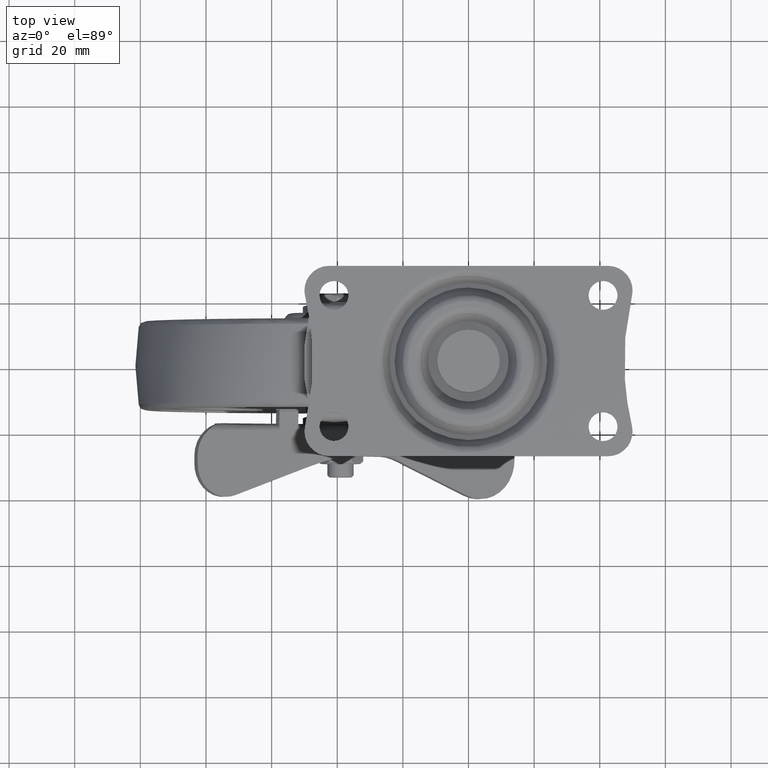
[diagram: clean part render]
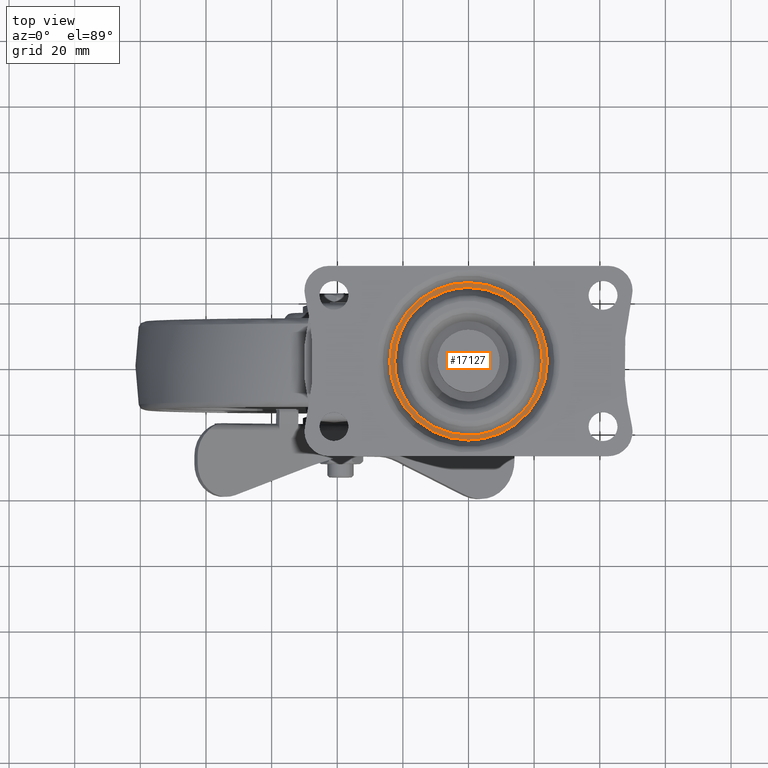
[diagram: same view with one face highlighted and labeled with its STEP entity id]
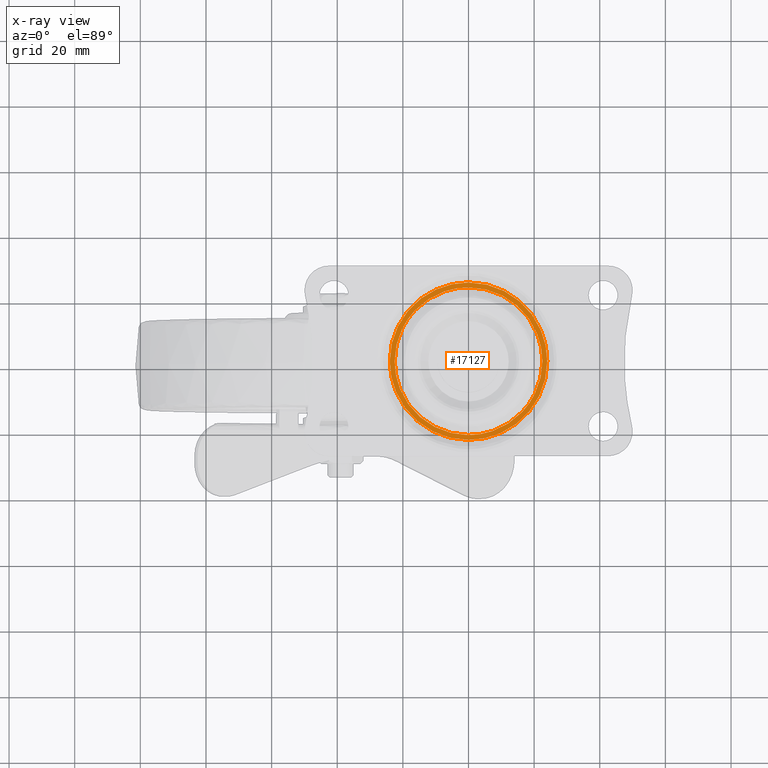
[diagram: x-ray of the same camera — body ghosted, the highlighted face saturated]
A machine part, top view. The second image highlights one B-rep face of the part: STEP entity #17127.
The next image is the same camera in x-ray: the body ghosted, the highlighted face saturated — about 0% of this face is hidden behind the body in this view.
In plain terms, the highlighted face is a freeform B-spline surface patch.
Its self-contained STEP definition (entity closure, byte-faithful):
#16836=CARTESIAN_POINT('',(-16.320922367602929,15.487977022959360,-3.200000531907828));
#16837=VERTEX_POINT('',#16836);
#16838=CARTESIAN_POINT('',(0.000004329984611,22.499999999999570,-3.200001000000045));
#16839=VERTEX_POINT('',#16838);
#16840=CARTESIAN_POINT('',(-16.320922367602929,15.487977022959360,-3.200000531907828));
#16841=CARTESIAN_POINT('',(-15.469885606284700,16.384833647597869,-3.200000556315980));
#16842=CARTESIAN_POINT('',(-13.263799079093580,18.356000927748401,-3.200000619587622));
#16843=CARTESIAN_POINT('',(-9.717726063862013,20.446033837152399,-3.200000721290731));
#16844=CARTESIAN_POINT('',(-5.135451983985228,22.079251848624420,-3.200000852712632));
#16845=CARTESIAN_POINT('',(-1.997310698178109,22.500618543444979,-3.200000942716056));
#16846=CARTESIAN_POINT('',(0.000004329984611,22.499999999999570,-3.200001000000045));
#16847=B_SPLINE_CURVE_WITH_KNOTS('',3,(#16840,#16841,#16842,#16843,#16844,#16845,#16846),.UNSPECIFIED.,.F.,.U.,(4,1,1,1,4),(0.000000038791317,3.709183661539690,8.845011385669306,12.268861749938640,18.260633422816419),.UNSPECIFIED.);
#16848=EDGE_CURVE('',#16837,#16839,#16847,.T.);
#16858=CARTESIAN_POINT('',(16.320922367603039,-15.487977022959489,-3.200000531907881));
#16859=VERTEX_POINT('',#16858);
#16865=CARTESIAN_POINT('',(22.500000000000000,-1.421085E-014,-3.200001000000045));
#16866=VERTEX_POINT('',#16865);
#16867=CARTESIAN_POINT('',(22.500000000000000,-1.421085E-014,-3.200001000000045));
#16868=CARTESIAN_POINT('',(22.500180227718289,-1.423550129231897,-3.200000956976178));
#16869=CARTESIAN_POINT('',(22.288152944410982,-3.647753166550937,-3.200000889754230));
#16870=CARTESIAN_POINT('',(21.494318595540971,-6.847360095082399,-3.200000793052707));
#16871=CARTESIAN_POINT('',(20.340013115671400,-9.843802078277660,-3.200000702491425));
#16872=CARTESIAN_POINT('',(18.585237319432171,-12.853163052590499,-3.200000611539718));
#16873=CARTESIAN_POINT('',(17.055858508556341,-14.713553538770050,-3.200000555313208));
#16874=CARTESIAN_POINT('',(16.320922367603039,-15.487977022959489,-3.200000531907881));
#16875=B_SPLINE_CURVE_WITH_KNOTS('',3,(#16867,#16868,#16869,#16870,#16871,#16872,#16873,#16874),.UNSPECIFIED.,.F.,.U.,(4,1,1,1,1,4),(0.000000036396628,4.270628053797895,6.672874702189596,9.875794080049168,13.879551547607250,17.082509699503689),.UNSPECIFIED.);
#16876=EDGE_CURVE('',#16866,#16859,#16875,.T.);
#16878=CARTESIAN_POINT('',(0.000004329984611,22.499999999999570,-3.200001000000045));
#16879=CARTESIAN_POINT('',(1.196484823647740,22.500062490826100,-3.200001000000046));
#16880=CARTESIAN_POINT('',(3.773582414959285,22.294042146823539,-3.200001000000044));
#16881=CARTESIAN_POINT('',(7.085785599829053,21.442744943746209,-3.200001000000043));
#16882=CARTESIAN_POINT('',(10.313725052029371,20.082396798755831,-3.200001000000051));
#16883=CARTESIAN_POINT('',(13.245480339928880,18.325230843771759,-3.200001000000038));
#16884=CARTESIAN_POINT('',(16.183376807630609,15.790997456840319,-3.200001000000067));
#16885=CARTESIAN_POINT('',(18.586143420262569,12.863170165930180,-3.200000999999989));
#16886=CARTESIAN_POINT('',(20.196180181628900,10.061178704099710,-3.200001000000159));
#16887=CARTESIAN_POINT('',(21.395184922843718,7.166524868246611,-3.200000999999970));
#16888=CARTESIAN_POINT('',(22.262036154566861,3.957608389489996,-3.200001000000128));
#16889=CARTESIAN_POINT('',(22.500160124159930,1.380574541986148,-3.200000999999967));
#16890=CARTESIAN_POINT('',(22.500000000000000,-1.421085E-014,-3.200001000000045));
#16891=B_SPLINE_CURVE_WITH_KNOTS('',3,(#16878,#16879,#16880,#16881,#16882,#16883,#16884,#16885,#16886,#16887,#16888,#16889,#16890),.UNSPECIFIED.,.F.,.U.,(4,1,1,1,1,1,1,1,1,1,4),(0.000000118791846,3.589473147414470,7.731302982061358,10.216388046609650,14.082074082489351,17.947655018944339,21.813285389824060,25.402878296077969,27.611826771469040,31.201419676204800,35.343136674225619),.UNSPECIFIED.);
#16892=EDGE_CURVE('',#16839,#16866,#16891,.T.);
#16915=CARTESIAN_POINT('',(-22.500000000000000,-1.421085E-014,-3.200001000000045));
#16916=VERTEX_POINT('',#16915);
#16917=CARTESIAN_POINT('',(-22.500000000000000,-1.421085E-014,-3.200001000000045));
#16918=CARTESIAN_POINT('',(-22.500148933175979,1.423541180279656,-3.200000956976445));
#16919=CARTESIAN_POINT('',(-22.220481800293630,4.359536921555522,-3.200000868242021));
#16920=CARTESIAN_POINT('',(-21.016217832696650,8.386217301157483,-3.200000746543891));
#16921=CARTESIAN_POINT('',(-19.058023951857841,12.198055396444920,-3.200000631338943));
#16922=CARTESIAN_POINT('',(-17.362231026773991,14.390977976951749,-3.200000565062383));
#16923=CARTESIAN_POINT('',(-16.320922367602929,15.487977022959360,-3.200000531907828));
#16924=B_SPLINE_CURVE_WITH_KNOTS('',3,(#16917,#16918,#16919,#16920,#16921,#16922,#16923),.UNSPECIFIED.,.F.,.U.,(4,1,1,1,4),(0.000000036392780,4.270628053795136,8.808149419733597,12.544967101305261,17.082509699503671),.UNSPECIFIED.);
#16925=EDGE_CURVE('',#16916,#16837,#16924,.T.);
#16927=CARTESIAN_POINT('',(-0.000004329984125,-22.499999999999599,-3.200001000000045));
#16928=VERTEX_POINT('',#16927);
#16929=CARTESIAN_POINT('',(-0.000004329984125,-22.499999999999599,-3.200001000000045));
#16930=CARTESIAN_POINT('',(-1.196494053778097,-22.500083625200698,-3.200001000000043));
#16931=CARTESIAN_POINT('',(-3.589479821988984,-22.308674084329279,-3.200001000000052));
#16932=CARTESIAN_POINT('',(-6.729009191225739,-21.542745487573089,-3.200001000000035));
#16933=CARTESIAN_POINT('',(-9.817783699719707,-20.329451988222939,-3.200001000000053));
#16934=CARTESIAN_POINT('',(-12.470240495599279,-18.826845717726130,-3.200001000000041));
#16935=CARTESIAN_POINT('',(-15.232669106221151,-16.671025682879680,-3.200001000000053));
#16936=CARTESIAN_POINT('',(-17.589539657340961,-14.195585545223731,-3.200001000000038));
#16937=CARTESIAN_POINT('',(-19.504840997869149,-11.366726631179979,-3.200001000000057));
#16938=CARTESIAN_POINT('',(-21.001361806754140,-8.300556478933322,-3.200001000000058));
#16939=CARTESIAN_POINT('',(-22.173241620877000,-4.601845113275963,-3.200001000000006));
#16940=CARTESIAN_POINT('',(-22.500269485214108,-1.656704897504979,-3.200001000000072));
#16941=CARTESIAN_POINT('',(-22.500000000000000,-1.421085E-014,-3.200001000000045));
#16942=B_SPLINE_CURVE_WITH_KNOTS('',3,(#16929,#16930,#16931,#16932,#16933,#16934,#16935,#16936,#16937,#16938,#16939,#16940,#16941),.UNSPECIFIED.,.F.,.U.,(4,1,1,1,1,1,1,1,1,1,4),(0.000000118787952,3.589473147412022,7.179072985098191,9.664140167381245,13.529850021173800,16.291061936497211,20.156595549144399,23.746140857085049,26.507352532960621,30.373033465052139,35.343136674225882),.UNSPECIFIED.);
#16943=EDGE_CURVE('',#16928,#16916,#16942,.T.);
#16945=CARTESIAN_POINT('',(16.320922367603039,-15.487977022959489,-3.200000531907881));
#16946=CARTESIAN_POINT('',(14.815775836387020,-17.075490300521381,-3.200000575076222));
#16947=CARTESIAN_POINT('',(12.320354665035291,-19.033277415278640,-3.200000646646103));
#16948=CARTESIAN_POINT('',(8.128808510959244,-21.091784154997779,-3.200000766861709));
#16949=CARTESIAN_POINT('',(4.374881428945385,-22.218677128477850,-3.200000874526172));
#16950=CARTESIAN_POINT('',(1.426606123880175,-22.500167448596859,-3.200000959084158));
#16951=CARTESIAN_POINT('',(-0.000004329984125,-22.499999999999599,-3.200001000000045));
#16952=B_SPLINE_CURVE_WITH_KNOTS('',3,(#16945,#16946,#16947,#16948,#16949,#16950,#16951),.UNSPECIFIED.,.F.,.U.,(4,1,1,1,4),(0.000000038790301,6.562428861084987,9.415622076021080,13.980801114618361,18.260633422815989),.UNSPECIFIED.);
#16953=EDGE_CURVE('',#16859,#16928,#16952,.T.);
#16981=CARTESIAN_POINT('',(-0.000002040609417,-23.999999999999929,-3.200001000000045));
#16982=VERTEX_POINT('',#16981);
#16983=CARTESIAN_POINT('',(-15.586753555320961,-18.249743637350502,-3.200000795387845));
#16984=VERTEX_POINT('',#16983);
#16985=CARTESIAN_POINT('',(-0.000002040609417,-23.999999999999929,-3.200001000000045));
#16986=CARTESIAN_POINT('',(-1.325362432913929,-24.000085842420940,-3.200000982601621));
#16987=CARTESIAN_POINT('',(-4.064438746033821,-23.772599371233639,-3.200000946644916));
#16988=CARTESIAN_POINT('',(-7.756219605961246,-22.814056615867379,-3.200000898181719));
#16989=CARTESIAN_POINT('',(-11.738025122243680,-21.089872261648349,-3.200000845911334));
#16990=CARTESIAN_POINT('',(-14.176020437667560,-19.455097870830571,-3.200000813906979));
#16991=CARTESIAN_POINT('',(-15.586753555320961,-18.249743637350502,-3.200000795387845));
#16992=B_SPLINE_CURVE_WITH_KNOTS('',3,(#16985,#16986,#16987,#16988,#16989,#16990,#16991),.UNSPECIFIED.,.F.,.U.,(4,1,1,1,4),(0.000000041337405,3.976096595320952,8.217297039938789,11.398144206815370,16.964684725741769),.UNSPECIFIED.);
#16993=EDGE_CURVE('',#16982,#16984,#16992,.T.);
#17003=CARTESIAN_POINT('',(15.586753555320961,18.249743637350470,-3.200000795387843));
#17004=VERTEX_POINT('',#17003);
#17010=CARTESIAN_POINT('',(24.0,-1.421085E-014,-3.200001000000045));
#17011=VERTEX_POINT('',#17010);
#17012=CARTESIAN_POINT('',(15.586753555320961,18.249743637350470,-3.200000795387843));
#17013=CARTESIAN_POINT('',(17.311860108883010,16.777476762440859,-3.200000811894577));
#17014=CARTESIAN_POINT('',(19.690257405049739,14.075674497522201,-3.200000842186626));
#17015=CARTESIAN_POINT('',(21.817543812529330,10.175855533148891,-3.200000885910524));
#17016=CARTESIAN_POINT('',(23.089810652890169,6.841376821397368,-3.200000923295994));
#17017=CARTESIAN_POINT('',(23.832171904366980,3.563759708646737,-3.200000960043965));
#17018=CARTESIAN_POINT('',(24.000020836724978,1.079919638214421,-3.200000987892194));
#17019=CARTESIAN_POINT('',(24.0,-1.421085E-014,-3.200001000000045));
#17020=B_SPLINE_CURVE_WITH_KNOTS('',3,(#17012,#17013,#17014,#17015,#17016,#17017,#17018,#17019),.UNSPECIFIED.,.F.,.U.,(4,1,1,1,1,4),(0.000000016889665,6.803564625713872,10.691312266038480,13.283145217399619,17.494878892581301,20.734669195931151),.UNSPECIFIED.);
#17021=EDGE_CURVE('',#17004,#17011,#17020,.T.);
#17023=CARTESIAN_POINT('',(24.0,-1.421085E-014,-3.200001000000045));
#17024=CARTESIAN_POINT('',(24.000181571196482,-1.570790449670680,-3.200001000000043));
#17025=CARTESIAN_POINT('',(23.700160760119889,-4.614140040855233,-3.200001000000059));
#17026=CARTESIAN_POINT('',(22.522499353672451,-8.583975621906061,-3.200001000000020));
#17027=CARTESIAN_POINT('',(20.690013394134059,-12.397819507616450,-3.200001000000059));
#17028=CARTESIAN_POINT('',(18.396824581891611,-15.611911843205659,-3.200001000000064));
#17029=CARTESIAN_POINT('',(15.507906919985730,-18.430503387966240,-3.200001000000016));
#17030=CARTESIAN_POINT('',(12.954895501797790,-20.275798426796310,-3.200001000000083));
#17031=CARTESIAN_POINT('',(10.199286473484991,-21.792479038973930,-3.200000999999960));
#17032=CARTESIAN_POINT('',(7.639987107398562,-22.815953524641159,-3.200001000000077));
#17033=CARTESIAN_POINT('',(4.123226399363999,-23.742900289732109,-3.200001000000018));
#17034=CARTESIAN_POINT('',(1.668987594521734,-24.000268420037511,-3.200001000000085));
#17035=CARTESIAN_POINT('',(-0.000002040609417,-23.999999999999929,-3.200001000000045));
#17036=B_SPLINE_CURVE_WITH_KNOTS('',3,(#17023,#17024,#17025,#17026,#17027,#17028,#17029,#17030,#17031,#17032,#17033,#17034,#17035),.UNSPECIFIED.,.F.,.U.,(4,1,1,1,1,1,1,1,1,1,4),(0.000000083560444,4.712366943496477,9.130309711003697,12.370132897419040,17.377110307462040,20.911278404791940,24.445631627319958,26.801877590745399,30.336205620366300,32.692436111686767,37.699349539132193),.UNSPECIFIED.);
#17037=EDGE_CURVE('',#17011,#16982,#17036,.T.);
#17060=CARTESIAN_POINT('',(-24.0,-1.421085E-014,-3.200001000000045));
#17061=VERTEX_POINT('',#17060);
#17062=CARTESIAN_POINT('',(-15.586753555320961,-18.249743637350502,-3.200000795387845));
#17063=CARTESIAN_POINT('',(-16.818667670707139,-17.197857320391570,-3.200000807181370));
#17064=CARTESIAN_POINT('',(-19.143195057672280,-14.764910214436220,-3.200000834459052));
#17065=CARTESIAN_POINT('',(-21.827073489386169,-10.421920020533600,-3.200000883151708));
#17066=CARTESIAN_POINT('',(-23.589013307863478,-5.399462928349617,-3.200000939462437));
#17067=CARTESIAN_POINT('',(-24.000396559045679,-1.835903968680006,-3.200000979416282));
#17068=CARTESIAN_POINT('',(-24.0,-1.421085E-014,-3.200001000000045));
#17069=B_SPLINE_CURVE_WITH_KNOTS('',3,(#17062,#17063,#17064,#17065,#17066,#17067,#17068),.UNSPECIFIED.,.F.,.U.,(4,1,1,1,4),(0.000000016888226,4.859688048289412,10.043356946840850,15.227022637811061,20.734669195931190),.UNSPECIFIED.);
#17070=EDGE_CURVE('',#16984,#17061,#17069,.T.);
#17072=CARTESIAN_POINT('',(0.000002040609439,23.999999999999901,-3.200001000000045));
#17073=VERTEX_POINT('',#17072);
#17074=CARTESIAN_POINT('',(-24.0,-1.421085E-014,-3.200001000000045));
#17075=CARTESIAN_POINT('',(-24.000890415892911,2.258145823507329,-3.200001000000039));
#17076=CARTESIAN_POINT('',(-23.567335765246121,5.301066697099230,-3.200001000000063));
#17077=CARTESIAN_POINT('',(-22.224009502338639,9.204791506316031,-3.200001000000027));
#17078=CARTESIAN_POINT('',(-21.030803709948270,11.688159414060481,-3.200001000000079));
#17079=CARTESIAN_POINT('',(-19.118856002659111,14.667048204634630,-3.200001000000031));
#17080=CARTESIAN_POINT('',(-16.178555149419260,17.992904054965109,-3.200001000000061));
#17081=CARTESIAN_POINT('',(-12.170224721027770,20.890129388885981,-3.200001000000022));
#17082=CARTESIAN_POINT('',(-8.206238279263062,22.646663999832370,-3.200001000000039));
#17083=CARTESIAN_POINT('',(-4.319582542890404,23.722335602550238,-3.200001000000079));
#17084=CARTESIAN_POINT('',(-1.668981636275134,24.000260396077699,-3.200001000000060));
#17085=CARTESIAN_POINT('',(0.000002040609439,23.999999999999901,-3.200001000000045));
#17086=B_SPLINE_CURVE_WITH_KNOTS('',3,(#17074,#17075,#17076,#17077,#17078,#17079,#17080,#17081,#17082,#17083,#17084,#17085),.UNSPECIFIED.,.F.,.U.,(4,1,1,1,1,1,1,1,1,4),(0.000000083558845,6.774102851483871,9.130309711002479,12.370132897418079,15.020878437406539,19.733200160836891,25.623751350395722,29.747146763519360,32.692436111686852,37.699349539132193),.UNSPECIFIED.);
#17087=EDGE_CURVE('',#17061,#17073,#17086,.T.);
#17089=CARTESIAN_POINT('',(0.000002040609439,23.999999999999901,-3.200001000000045));
#17090=CARTESIAN_POINT('',(2.385746574958570,24.001041576757480,-3.200000968681629));
#17091=CARTESIAN_POINT('',(6.537973723696435,23.375602411450679,-3.200000914174039));
#17092=CARTESIAN_POINT('',(11.758756678550300,21.114400410583400,-3.200000845639149));
#17093=CARTESIAN_POINT('',(14.444652273563230,19.225361124647449,-3.200000810380579));
#17094=CARTESIAN_POINT('',(15.586753555320961,18.249743637350470,-3.200000795387843));
#17095=B_SPLINE_CURVE_WITH_KNOTS('',3,(#17089,#17090,#17091,#17092,#17093,#17094),.UNSPECIFIED.,.F.,.U.,(4,1,1,4),(0.000000041338719,7.156985470846188,12.458438937523320,16.964684725741741),.UNSPECIFIED.);
#17096=EDGE_CURVE('',#17073,#17004,#17095,.T.);
#17106=CARTESIAN_POINT('',(26.397599906966679,-26.397599906966612,-3.200001000000045));
#17107=CARTESIAN_POINT('',(-26.397601194427011,-26.397599906966612,-3.200001000000046));
#17108=CARTESIAN_POINT('',(26.397599906966679,26.397601194426901,-3.200001000000046));
#17109=CARTESIAN_POINT('',(-26.397601194427011,26.397601194426901,-3.200001000000046));
#17110=B_SPLINE_SURFACE_WITH_KNOTS('',1,1,((#17106,#17108),(#17107,#17109)),.UNSPECIFIED.,.F.,.F.,.U.,(2,2),(2,2),(0.0,52.795201101393687),(0.0,52.795201101393502),.UNSPECIFIED.);
#17111=ORIENTED_EDGE('',*,*,#17070,.F.);
#17112=ORIENTED_EDGE('',*,*,#16993,.F.);
#17113=ORIENTED_EDGE('',*,*,#17037,.F.);
#17114=ORIENTED_EDGE('',*,*,#17021,.F.);
#17115=ORIENTED_EDGE('',*,*,#17096,.F.);
#17116=ORIENTED_EDGE('',*,*,#17087,.F.);
#17117=EDGE_LOOP('',(#17111,#17112,#17113,#17114,#17115,#17116));
#17118=FACE_OUTER_BOUND('',#17117,.T.);
#17119=ORIENTED_EDGE('',*,*,#16892,.T.);
#17120=ORIENTED_EDGE('',*,*,#16876,.T.);
#17121=ORIENTED_EDGE('',*,*,#16953,.T.);
#17122=ORIENTED_EDGE('',*,*,#16943,.T.);
#17123=ORIENTED_EDGE('',*,*,#16925,.T.);
#17124=ORIENTED_EDGE('',*,*,#16848,.T.);
#17125=EDGE_LOOP('',(#17119,#17120,#17121,#17122,#17123,#17124));
#17126=FACE_BOUND('',#17125,.T.);
#17127=ADVANCED_FACE('',(#17118,#17126),#17110,.F.);